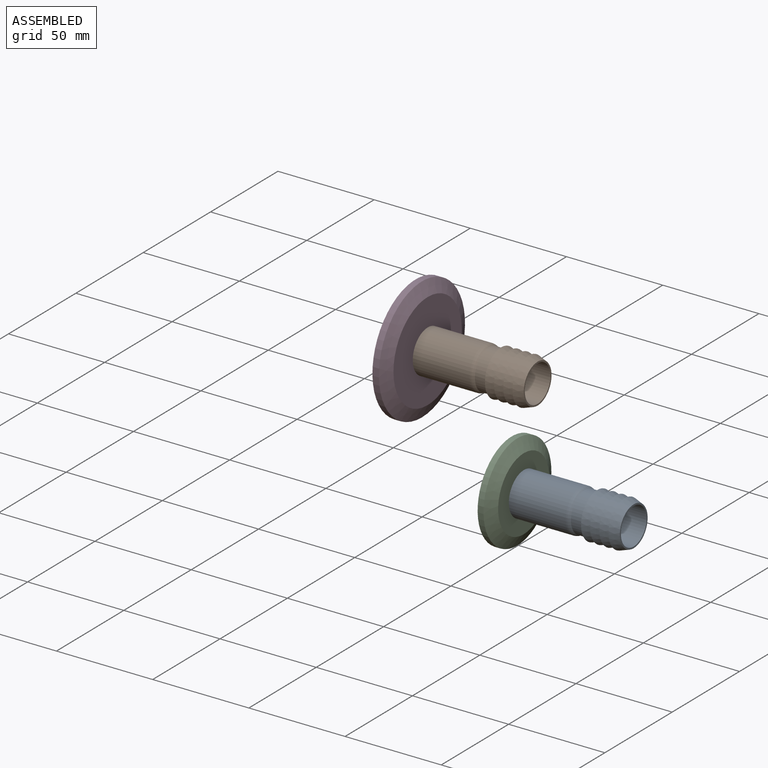
[diagram: assembled view]
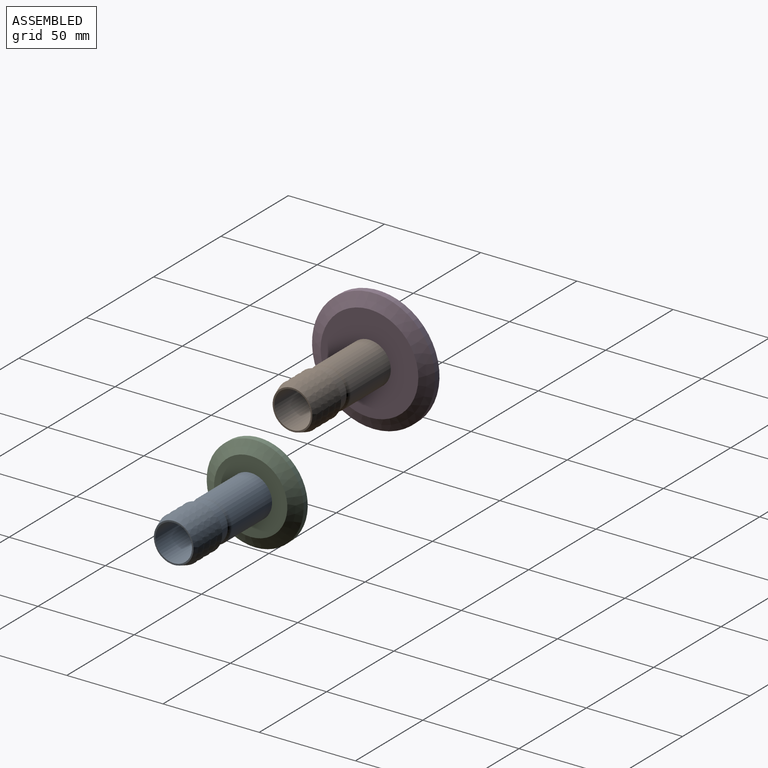
[diagram: assembled view, second angle]
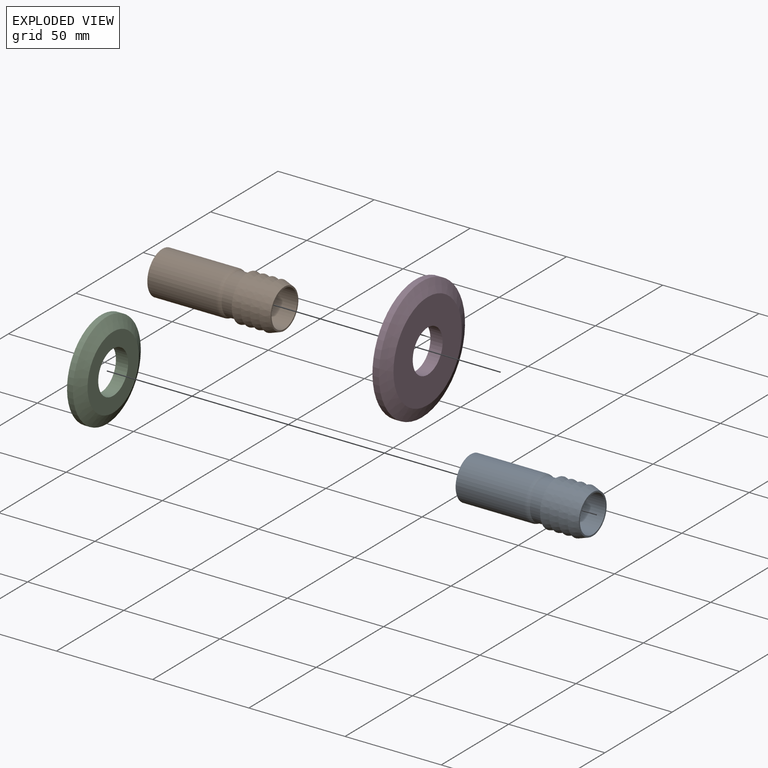
[diagram: exploded view]
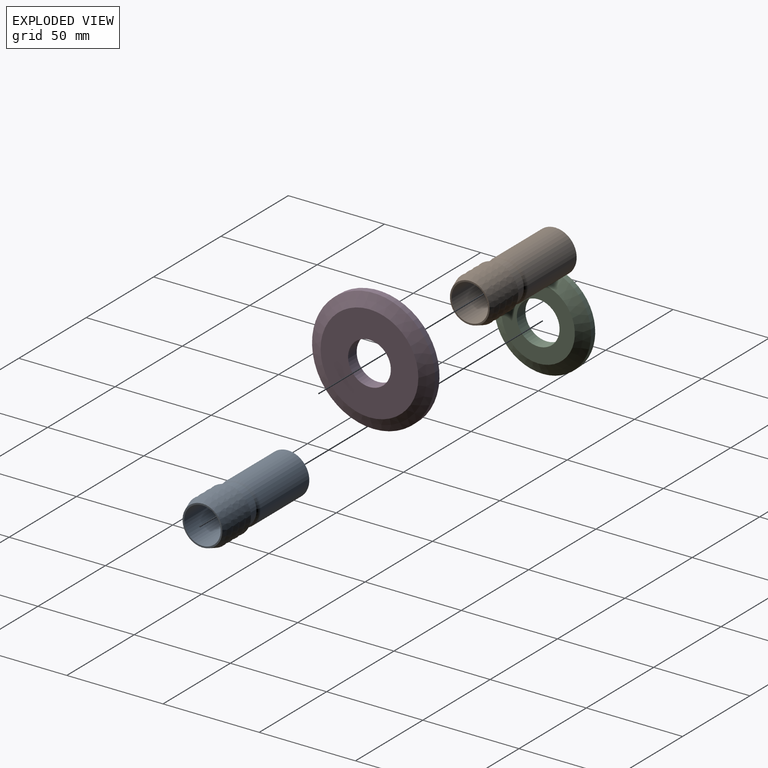
[diagram: exploded view, second angle]
ASSEMBLY  parts=4 mates=4
PART A: 14 faces, bbox 63.5x24.1x24.1 mm
  f0: cylinder r=11.11mm len=36mm, axis (-1,0,0), area 2513.6mm2, adj f1,f13
  f1: plane 22.23x22.23mm, normal (-1,0,0), area 102.9mm2, adj f0,f12
  f2: plane 20.64x20.64mm, normal (1,0,0), area 49.5mm2, adj f3,f12
  f3: cone r=10.32mm half-angle=18.4deg, axis (-1,0,0), area 350.5mm2, adj f2,f4
  f4: plane 23.81x23.81mm, normal (-1,0,0), area 110.8mm2, adj f3,f5
  f5: cone r=10.32mm half-angle=18.4deg, axis (-1,0,0), area 350.5mm2, adj f4,f6
  f6: plane 23.81x23.81mm, normal (-1,0,0), area 110.8mm2, adj f5,f7
  f7: cone r=10.32mm half-angle=18.4deg, axis (-1,0,0), area 350.5mm2, adj f6,f8
  f8: plane 23.81x23.81mm, normal (-1,0,0), area 110.8mm2, adj f7,f9
  f9: cone r=10.32mm half-angle=18.4deg, axis (-1,0,0), area 350.5mm2, adj f8,f10
  f10: plane 23.81x23.81mm, normal (-1,0,0), area 110.8mm2, adj f9,f11
  f11: cylinder r=10.32mm len=20.64mm, axis (-1,0,0), area 411.7mm2, adj f10,f13
  f12: cylinder r=9.53mm len=63.5mm, axis (1,0,0), area 3800.3mm2, adj f1,f2
  f13: torus R=7.94mm, axis (1,0,0), area 156.3mm2, adj f0,f11
PART B: same geometry as A
PART C: 5 faces, bbox 6.4x50.4x50.4 mm
  f0: plane 50.39x50.39mm, normal (-1,0,0), area 1606.6mm2, adj f3,f4
  f1: plane 38.1x38.1mm, normal (1,0,0), area 752.1mm2, adj f2,f4
  f2: cone r=25.2mm half-angle=61.8deg, axis (-1,0,0), area 969.8mm2, adj f1,f3
  f3: cylinder r=25.2mm len=50.39mm, axis (1,0,0), area 482.8mm2, adj f0,f2
  f4: cylinder r=11.11mm len=22.23mm, axis (1,0,0), area 443.4mm2, adj f0,f1
PART D: 5 faces, bbox 6.4x63.9x63.9 mm
  f0: plane 63.91x63.91mm, normal (-1,0,0), area 2819.6mm2, adj f3,f4
  f1: plane 50.8x50.8mm, normal (1,0,0), area 1638.9mm2, adj f2,f4
  f2: cone r=31.95mm half-angle=65.4deg, axis (-1,0,0), area 1298.3mm2, adj f1,f3
  f3: cylinder r=31.95mm len=63.91mm, axis (1,0,0), area 673.5mm2, adj f0,f2
  f4: cylinder r=11.11mm len=22.23mm, axis (1,0,0), area 443.4mm2, adj f0,f1
PLACE A t=(0,-4.99,-43.42)mm
PLACE B t=(-62.51,12.96,0.01)mm
PLACE C t=(0,-4.99,-43.42)mm
PLACE D t=(-62.51,12.96,0.01)mm
MATE parallel C.f2 <-> A.f0  axis (-1,0,0) through (0,-4.99,-43.42)mm
MATE cylindrical B.f0 <-> D.f4  axis (-1,0,0) through (-44.51,12.96,0.01)mm
MATE cylindrical C.f4 <-> A.f0  axis (1,0,0) through (6.35,-4.99,-43.42)mm
MATE parallel D.f2 <-> B.f0  axis (-1,0,0) through (-62.51,12.96,0.01)mm
